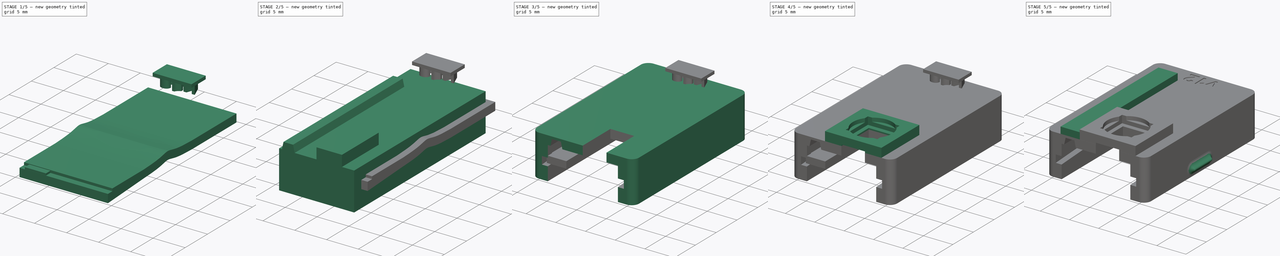
[diagram: build sequence overview — one tinted view per stage of 5, left to right]
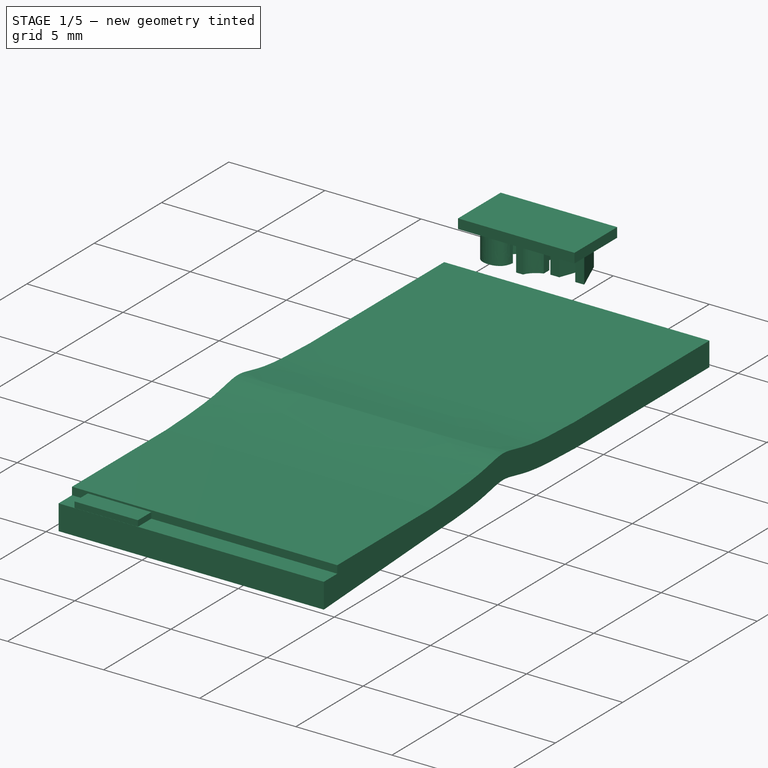
[diagram: stage 1 of 5 — iso view after this stage's code; geometry added in this stage tinted green]
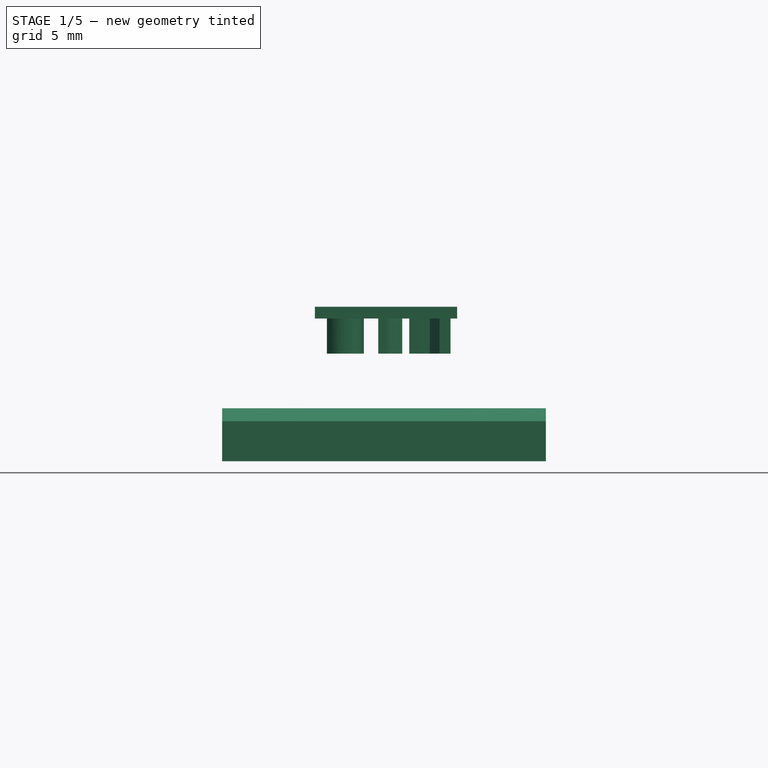
[diagram: stage 1 of 5 — front view after this stage's code; geometry added in this stage tinted green]
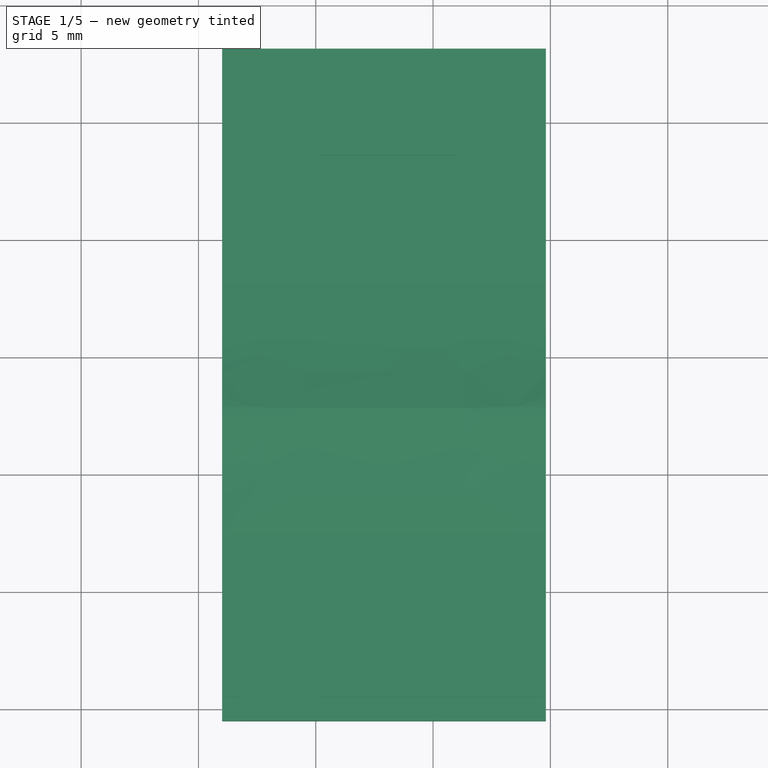
[diagram: stage 1 of 5 — top view after this stage's code; geometry added in this stage tinted green]
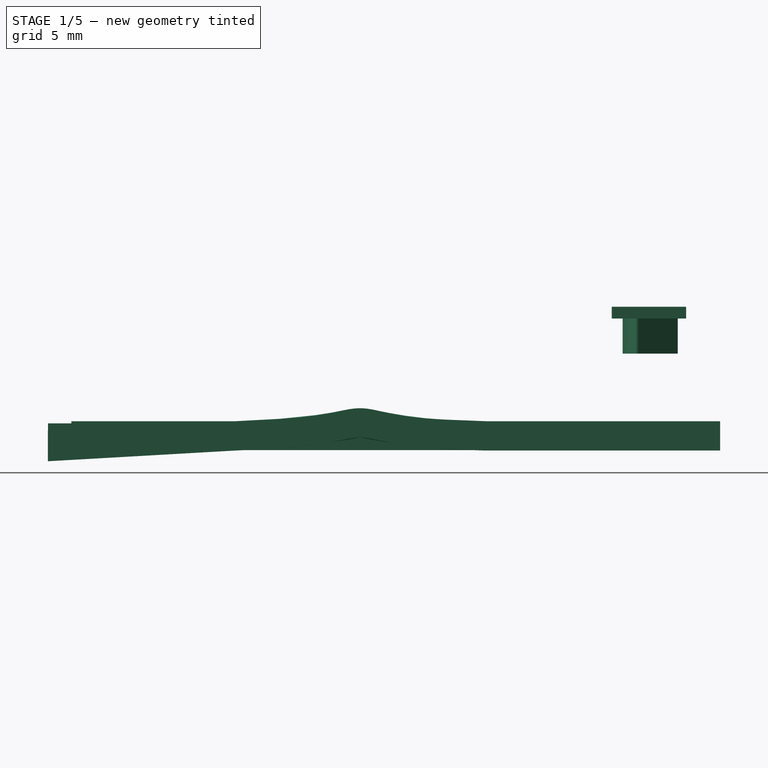
[diagram: stage 1 of 5 — right view after this stage's code; geometry added in this stage tinted green]
FCSTD DOCUMENT  (FreeCAD 0.21R33668 +26 (Git))
Label: HMV080_Enclosure_Inner_Shell
License: All rights reserved
LicenseURL: http://en.wikipedia.org/wiki/All_rights_reserved
objects: Sketcher::SketchObject×5, PartDesign::Pad×5, PartDesign::Body×5, Part::FeaturePython×5, Part::Cut×4, Part::MultiFuse×1
note: 30 computed .brp shape members not serialized (recipe doc carries the construction recipe); baked Part::Feature solids carry a one-line shape summary decoded from their .brp

FEATURE [Part::FeaturePython] b_HMV080_flex_slot_complete_channel_001_  label="HMV080_flex-slot-complete_channel_001"  # a2plus imported part (geometry in sourceFile) (typed FeaturePython)
  Placement = pos=(-8.99121,-20.5058,1.23221) rot=(0,0,1;1.5708rad)
  a2p_Version = 0.4.67
  fixedPosition = false
  objectType = a2pPart
  sourceFile = .\HMV080_flex-slot-complete_channel.FCStd
  subassemblyImport = false
  timeLastImport = 1.73801e+09
  updateColors = true
FEATURE [Sketcher::SketchObject] Sketch
  FullyConstrained = true
  MapMode = 5
  Support = -> [XY_Plane]
  sketch-geometry (5):
    g0: LineSegment StartX=-4.86807 StartY=3.50103 StartZ=0 EndX=-8.16807 EndY=3.50103 EndZ=0
    g1: LineSegment StartX=-8.16807 StartY=3.50103 StartZ=0 EndX=-8.16807 EndY=-20.499 EndZ=0
    g2: LineSegment StartX=-8.16807 StartY=-20.499 StartZ=0 EndX=-4.86807 EndY=-20.499 EndZ=0
    g3: LineSegment StartX=-4.86807 StartY=-20.499 StartZ=0 EndX=-4.86807 EndY=3.50103 EndZ=0
    g4: GeomPoint X=-6.51807 Y=-20.499 Z=0
  constraints (13):
    c: Coincident(g0,g1)
    c: Coincident(g1,g2)
    c: Coincident(g2,g3)
    c: Coincident(g3,g0)
    c: Horizontal(g0)
    c: Horizontal(g2)
    c: Vertical(g1)
    c: Vertical(g3)
    c: Symmetric(g2,g1,g4)
    c: DistanceX(g4) = -6.51807
    c: DistanceY(g4) = -20.499
    c: DistanceX(g1,g2) = 3.3
    c: DistanceY(g3,g3) = 24
FEATURE [PartDesign::Pad] Pad
  Direction = (0,0,1)
  Length = 1.14
  Length2 = 10
  Profile = -> Sketch
  ReferenceAxis = -> Sketch [N_Axis]
  Type = 0
FEATURE [Part::FeaturePython] b_version_text_cutter_001_  label="version_text_cutter_001"  # a2plus imported part (geometry in sourceFile) (typed FeaturePython)
  Placement = pos=(0.76,6.34,5.61) rot=(0,0,1;3.14159rad)
  a2p_Version = 0.4.67
  fixedPosition = true
  objectType = a2pPart
  sourceFile = .\version_text_cutter.FCStd
  subassemblyImport = false
  timeLastImport = 1.73922e+09
  updateColors = true
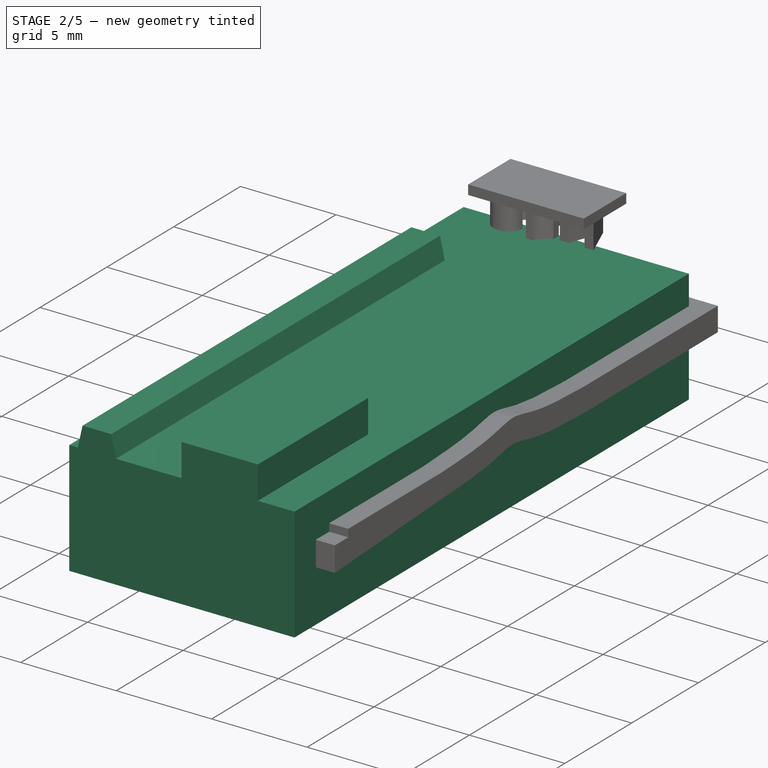
[diagram: stage 2 of 5 — iso view after this stage's code; geometry added in this stage tinted green]
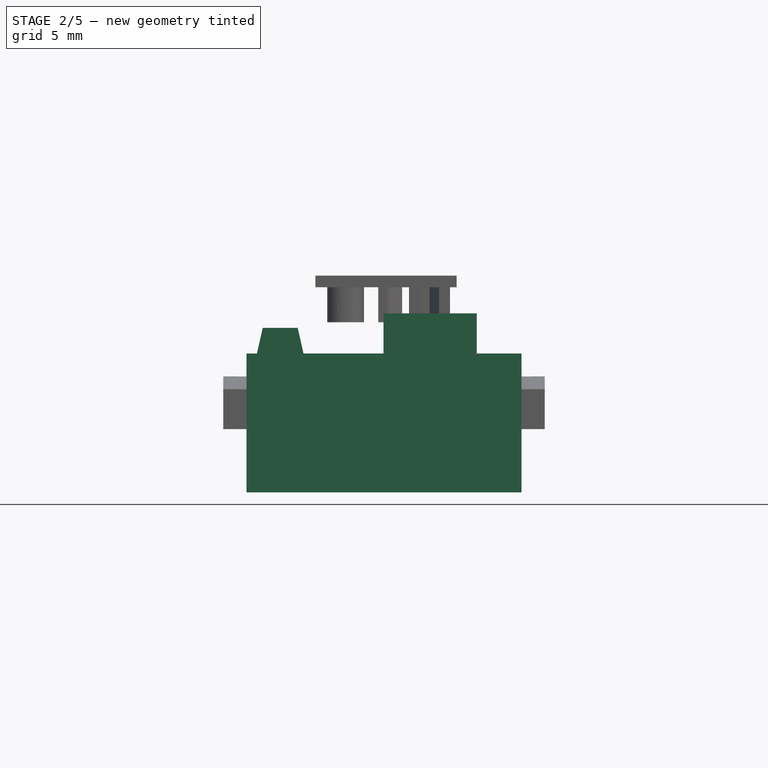
[diagram: stage 2 of 5 — front view after this stage's code; geometry added in this stage tinted green]
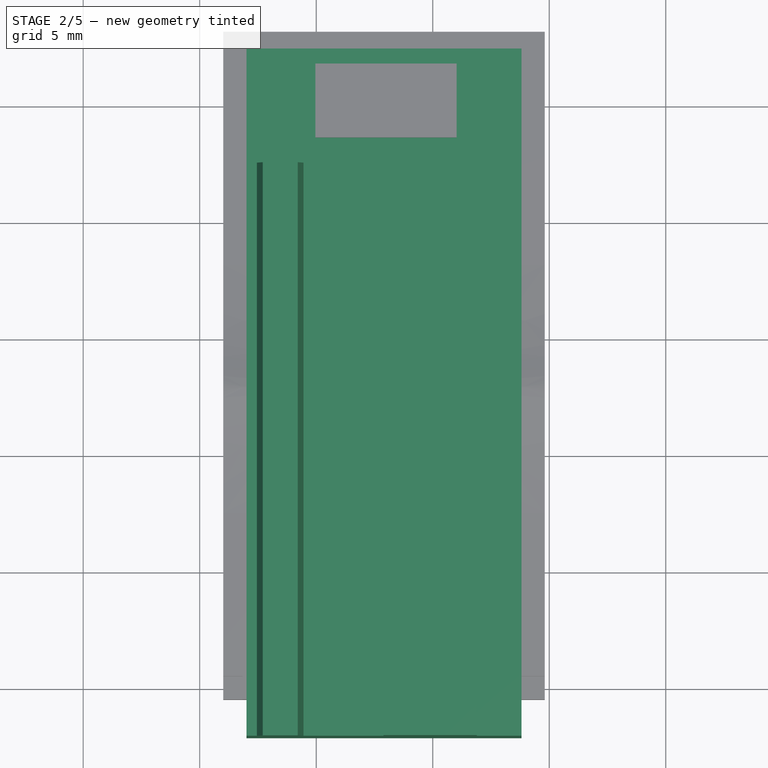
[diagram: stage 2 of 5 — top view after this stage's code; geometry added in this stage tinted green]
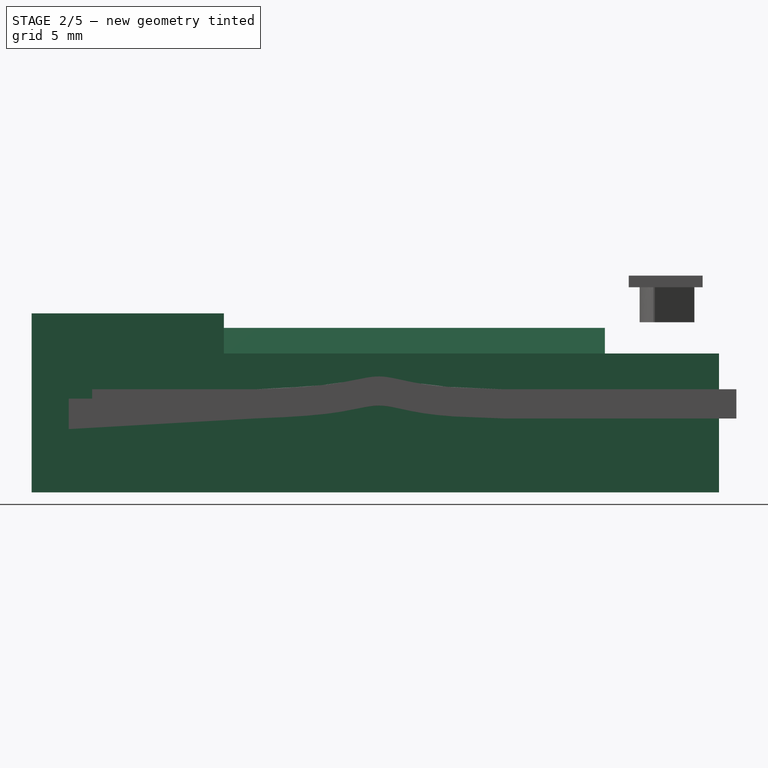
[diagram: stage 2 of 5 — right view after this stage's code; geometry added in this stage tinted green]
FEATURE [PartDesign::Body] Body014
  Group = -> [Sketch016,Pad014]
  Origin = -> Origin014
  Placement = pos=(0,0,-2.75) rot=(0,0,1;0rad)
  Tip = -> Pad014
FEATURE [Sketcher::SketchObject] Sketch023
  FullyConstrained = true
  MapMode = 5
  Placement = pos=(0,0,0) rot=(1,0,0;1.5708rad)
  Support = -> [XZ_Plane021]
  sketch-geometry (18):
    g0: LineSegment StartX=3.81 StartY=2.77 StartZ=0 EndX=1.89 EndY=2.77 EndZ=0
    g1: LineSegment StartX=1.89 StartY=4.49 StartZ=0 EndX=-2.11 EndY=4.49 EndZ=0
    g2: LineSegment StartX=-7.99 StartY=2.77 StartZ=0 EndX=-7.99 EndY=-3.19 EndZ=0
    g3: LineSegment StartX=-7.99 StartY=-3.19 StartZ=0 EndX=3.81 EndY=-3.19 EndZ=0
    g4: LineSegment StartX=3.81 StartY=-3.19 StartZ=0 EndX=3.81 EndY=2.77 EndZ=0
    g5: LineSegment StartX=-2.11 StartY=4.49 StartZ=0 EndX=-2.11 EndY=2.77 EndZ=0
    g6: LineSegment StartX=1.89 StartY=4.49 StartZ=0 EndX=1.89 EndY=2.77 EndZ=0
    g7: GeomPoint X=-0.11 Y=4.49 Z=0
    g8: GeomPoint X=-2.09 Y=-3.19 Z=0
    g9: GeomPoint X=-6.87 Y=2.77 Z=0
    g10: GeomPoint X=-6.22 Y=2.77 Z=0
    g11: GeomPoint X=-6.545 Y=2.77 Z=0
    g12: LineSegment StartX=-5.545 StartY=2.77 StartZ=0 EndX=-5.795 EndY=3.87 EndZ=0
    g13: LineSegment StartX=-5.795 StartY=3.87 StartZ=0 EndX=-7.295 EndY=3.87 EndZ=0
    g14: LineSegment StartX=-7.295 StartY=3.87 StartZ=0 EndX=-7.545 EndY=2.77 EndZ=0
    g15: LineSegment StartX=-7.99 StartY=2.77 StartZ=0 EndX=-7.545 EndY=2.77 EndZ=0
    g16: LineSegment StartX=-2.11 StartY=2.77 StartZ=0 EndX=-5.545 EndY=2.77 EndZ=0
    g17: GeomPoint X=-6.545 Y=3.87 Z=0
  constraints (43):
    c: Horizontal(g0)
    c: Horizontal(g1)
    c: Vertical(g2)
    c: Coincident(g3,g2)
    c: Horizontal(g3)
    c: Coincident(g4,g3)
    c: Vertical(g4)
    c: DistanceX(g1,g1) = 4
    c: DistanceY(g0,g1) = 1.72
    c: Coincident(g5,g1)
    c: Coincident(g6,g1)
    c: Coincident(g6,g0)
    c: Vertical(g6)
    c: Vertical(g5)
    c: DistanceY(g-1,g1) = 4.49
    c: Symmetric(g1,g1,g7)
    c: Symmetric(g3,g2,g8)
    c: DistanceX(g8,g-1) = 2.09
    c: DistanceX(g3,g3) = 11.8
    c: DistanceX(g8,g7) = 1.98
    c: Horizontal(g0,g5)
    c: Coincident(g4,g0)
    c: DistanceY(g3,g-1) = 3.19
    c: DistanceX(g2,g9) = 1.12
    c: DistanceX(g9,g10) = 0.65
    c: Symmetric(g10,g9,g11)
    c: Coincident(g13,g12)
    c: Horizontal(g13)
    c: Coincident(g14,g13)
    c: DistanceY(g12,g12) = 1.1
    c: Coincident(g15,g2)
    c: Coincident(g15,g14)
    c: Horizontal(g15)
    c: Coincident(g16,g5)
    c: Coincident(g16,g12)
    c: Horizontal(g16)
    c: Horizontal(g11,g14)
    c: DistanceX(g13,g13) = 1.5
    c: Symmetric(g12,g14,g11)
    c: Horizontal(g10,g2)
    c: Symmetric(g12,g13,g17)
    c: Vertical(g17,g11)
    c: DistanceX(g14,g13) = 0.25
FEATURE [PartDesign::Pad] Pad021
  Direction = (0,-1,-2e-16)
  Length = 29.5
  Length2 = 10
  Placement = pos=(0,0,0) rot=(1,0,0;1.5708rad)
  Profile = -> Sketch023
  ReferenceAxis = -> Sketch023 [N_Axis]
  Reversed = true
  Type = 0
FEATURE [PartDesign::Body] Body021
  Group = -> [Sketch023,Pad021]
  Origin = -> Origin021
  Placement = pos=(0,-22.1,0) rot=(0,0,1;0rad)
  Tip = -> Pad021
FEATURE [Sketcher::SketchObject] Sketch024
  FullyConstrained = true
  MapMode = 5
  Support = -> [XY_Plane022]
  sketch-geometry (8):
    g0: LineSegment StartX=2.43874 StartY=7.5 StartZ=0 EndX=-2.56126 EndY=7.5 EndZ=0
    g1: LineSegment StartX=2.43874 StartY=7.5 StartZ=0 EndX=2.43874 EndY=-13.85 EndZ=0
    g2: LineSegment StartX=-2.56126 StartY=-13.85 StartZ=0 EndX=2.43874 EndY=-13.85 EndZ=0
    g3: GeomPoint X=-0.06126 Y=7.5 Z=0
    g4: LineSegment StartX=-2.56126 StartY=7.5 StartZ=0 EndX=-7.56126 EndY=7.5 EndZ=0
    g5: LineSegment StartX=-7.56126 StartY=7.5 StartZ=0 EndX=-7.56126 EndY=2.5 EndZ=0
    g6: LineSegment StartX=-7.56126 StartY=2.5 StartZ=0 EndX=-2.56126 EndY=2.5 EndZ=0
    g7: LineSegment StartX=-2.56126 StartY=-13.85 StartZ=0 EndX=-2.56126 EndY=2.5 EndZ=0
  constraints (22):
    c: Horizontal(g0)
    c: Coincident(g1,g0)
    c: Vertical(g1)
    c: Coincident(g2,g1)
    c: Horizontal(g2)
    c: Symmetric(g0,g0,g3)
    c: DistanceY(g-1,g3) = 7.5
    c: DistanceY(g1,g1) = 21.35
    c: DistanceX(g0,g0) = 5
    c: DistanceX(g3,g-1) = 0.06126
    c: Coincident(g4,g0)
    c: Horizontal(g4)
    c: Coincident(g5,g4)
    c: Vertical(g5)
    c: Coincident(g6,g5)
    c: Horizontal(g6)
    c: DistanceY(g5,g5) = 5
    c: DistanceX(g4,g4) = 5
    c: Coincident(g7,g2)
    c: Coincident(g7,g6)
    c: Vertical(g7)
    c: Equal(g6,g4)
FEATURE [PartDesign::Pad] Pad022
  Direction = (0,0,1)
  Length = 1.72
  Length2 = 10
  Profile = -> Sketch024
  ReferenceAxis = -> Sketch024 [N_Axis]
  Reversed = true
  Type = 0
FEATURE [PartDesign::Body] Body022
  Group = -> [Sketch024,Pad022]
  Origin = -> Origin022
  Placement = pos=(0,0,4.49) rot=(0,0,1;0rad)
  Tip = -> Pad022
FEATURE [Part::Cut] Cut006
  Base = -> Body021
  Tool = -> Body022
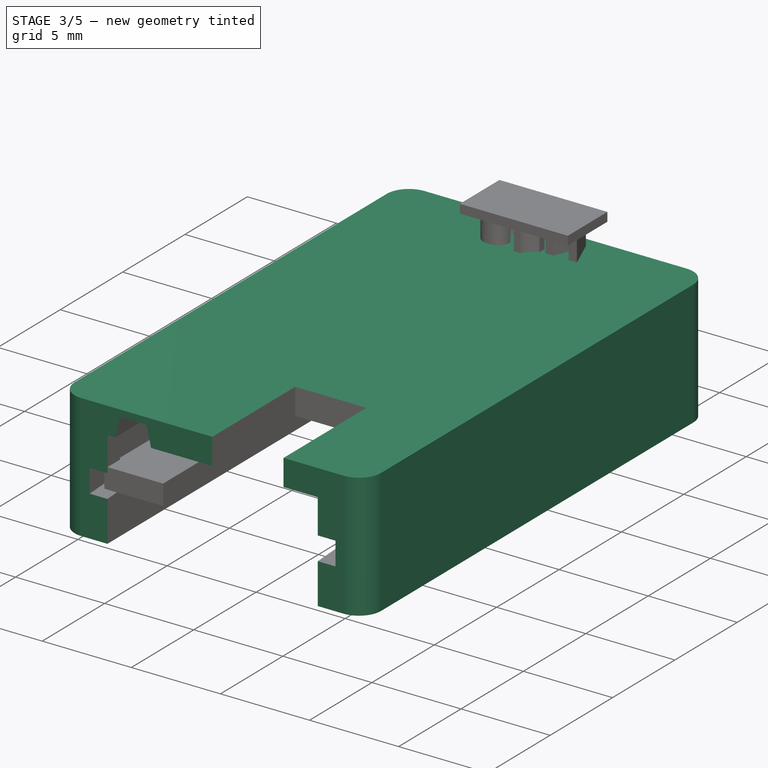
[diagram: stage 3 of 5 — iso view after this stage's code; geometry added in this stage tinted green]
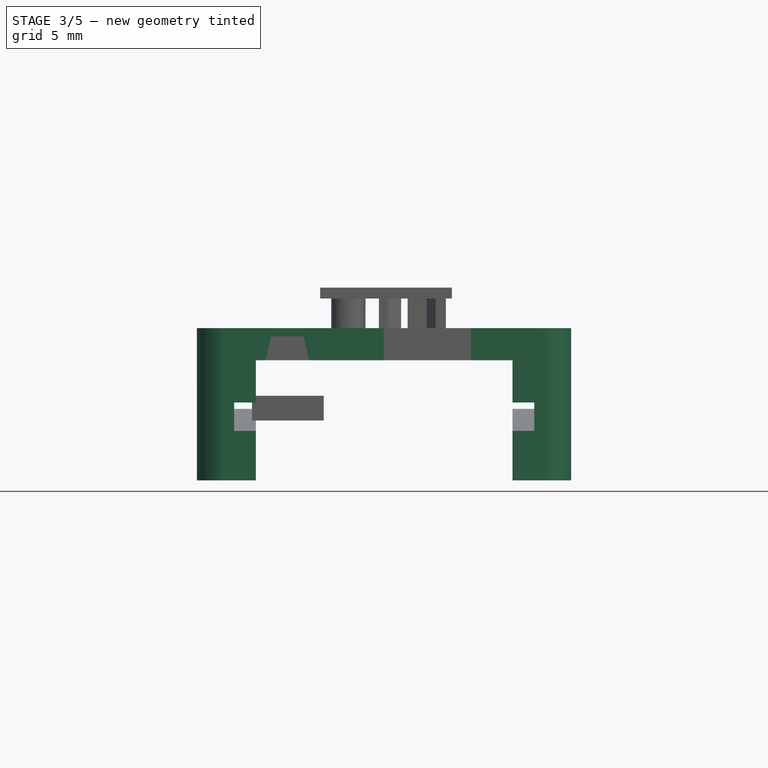
[diagram: stage 3 of 5 — front view after this stage's code; geometry added in this stage tinted green]
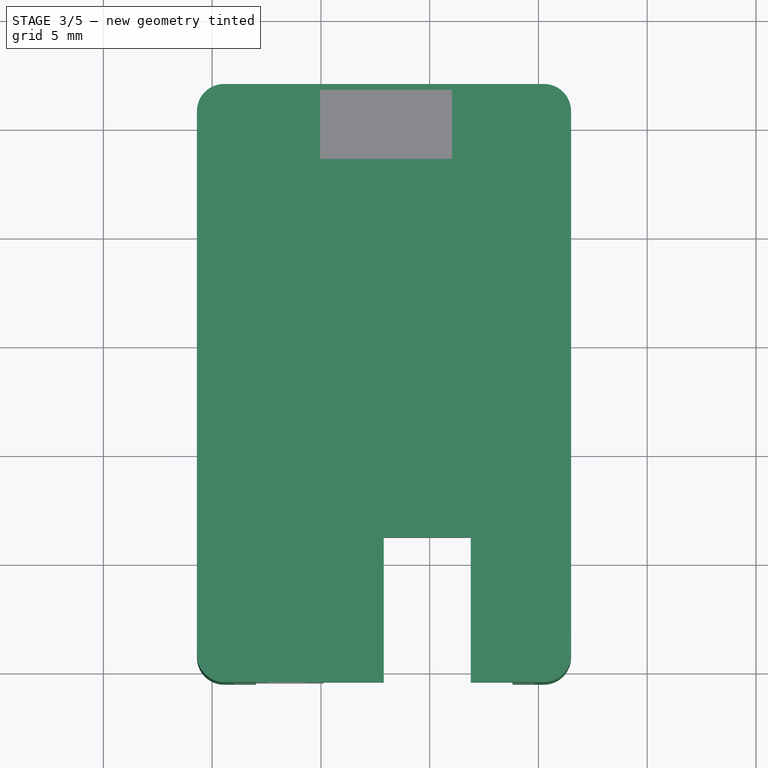
[diagram: stage 3 of 5 — top view after this stage's code; geometry added in this stage tinted green]
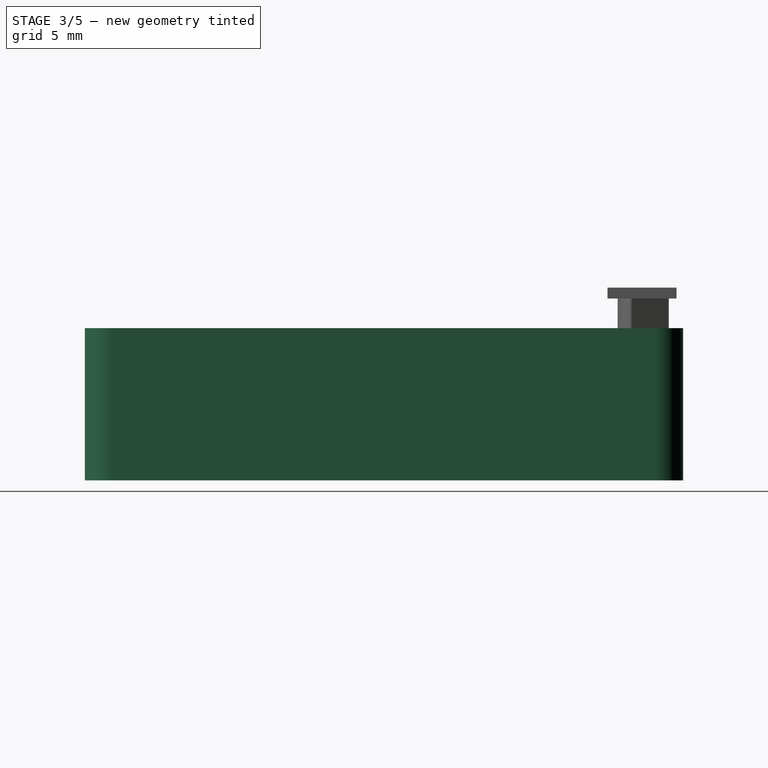
[diagram: stage 3 of 5 — right view after this stage's code; geometry added in this stage tinted green]
FEATURE [Sketcher::SketchObject] Sketch016
  FullyConstrained = true
  MapMode = 5
  Support = -> [XY_Plane014]
  expr: Constraints[23] = .Constraints.arc1
  expr: Constraints[24] = .Constraints.arc1
  expr: Constraints[25] = .Constraints.arc1
  sketch-geometry (12):
    g0: LineSegment StartX=-9.45 StartY=7 StartZ=0 EndX=5.25 EndY=7 EndZ=0
    g1: LineSegment StartX=6.5 StartY=5.75 StartZ=0 EndX=6.5 EndY=-19.25 EndZ=0
    g2: LineSegment StartX=5.25 StartY=-20.5 StartZ=0 EndX=-9.45 EndY=-20.5 EndZ=0
    g3: LineSegment StartX=-10.7 StartY=-19.25 StartZ=0 EndX=-10.7 EndY=5.75 EndZ=0
    g4: ArcOfCircle CenterX=-9.45 CenterY=5.75 CenterZ=0 NormalX=0 NormalY=0 NormalZ=1 AngleXU=0 Radius=1.25 StartAngle=1.5708 EndAngle=3.14159
    g5: GeomPoint X=-10.7 Y=7 Z=0
    g6: ArcOfCircle CenterX=5.25 CenterY=5.75 CenterZ=0 NormalX=0 NormalY=0 NormalZ=1 AngleXU=0 Radius=1.25 StartAngle=1e-16 EndAngle=1.5708
    g7: GeomPoint X=6.5 Y=7 Z=0
    g8: ArcOfCircle CenterX=5.25 CenterY=-19.25 CenterZ=0 NormalX=0 NormalY=0 NormalZ=1 AngleXU=0 Radius=1.25 StartAngle=4.71239 EndAngle=6.28319
    g9: GeomPoint X=6.5 Y=-20.5 Z=0
    g10: ArcOfCircle CenterX=-9.45 CenterY=-19.25 CenterZ=0 NormalX=0 NormalY=0 NormalZ=1 AngleXU=0 Radius=1.25 StartAngle=3.14159 EndAngle=4.71239
    g11: GeomPoint X=-10.7 Y=-20.5 Z=0
  constraints (29):
    c: Horizontal(g0)
    c: Horizontal(g2)
    c: Vertical(g1)
    c: Vertical(g3)
    c: DistanceY(g-1,g7) = 7
    c: DistanceX(g-1,g7) = 6.5
    c: PointOnObject(g5,g0)
    c: PointOnObject(g5,g3)
    c: Tangent(g0,g4) = 1.5708
    c: Tangent(g3,g4) = 1.5708
    c: Diameter(g4) = 2.5  'arc1'
    c: PointOnObject(g7,g0)
    c: PointOnObject(g7,g1)
    c: Tangent(g0,g6) = 1.5708
    c: Tangent(g1,g6) = 1.5708
    c: PointOnObject(g9,g1)
    c: PointOnObject(g9,g2)
    c: Tangent(g1,g8) = 1.5708
    c: Tangent(g2,g8) = 1.5708
    c: PointOnObject(g11,g2)
    c: PointOnObject(g11,g3)
    c: Tangent(g2,g10) = 1.5708
    c: Tangent(g3,g10) = 1.5708
    c: Diameter(g6) = 2.5
    c: Diameter(g8) = 2.5
    c: Diameter(g10) = 2.5
    c: DistanceX(g5,g-1) = 10.7
    c: DistanceY(g9,g7) = 27.5
    c: DistanceX(g5,g7) = 17.2
FEATURE [PartDesign::Pad] Pad014
  Direction = (0,0,1)
  Length = 7
  Length2 = 10
  Profile = -> Sketch016
  ReferenceAxis = -> Sketch016 [N_Axis]
  Type = 0
FEATURE [Part::Cut] Cut007  label="inner_shell_slots_Cut007"
  Base = -> Body014
  Tool = -> Cut006
FEATURE [Part::Cut] Cut017  label="flex_slot_complete_Cut"
  Base = -> Cut007
  Tool = -> b_HMV080_flex_slot_complete_channel_001_
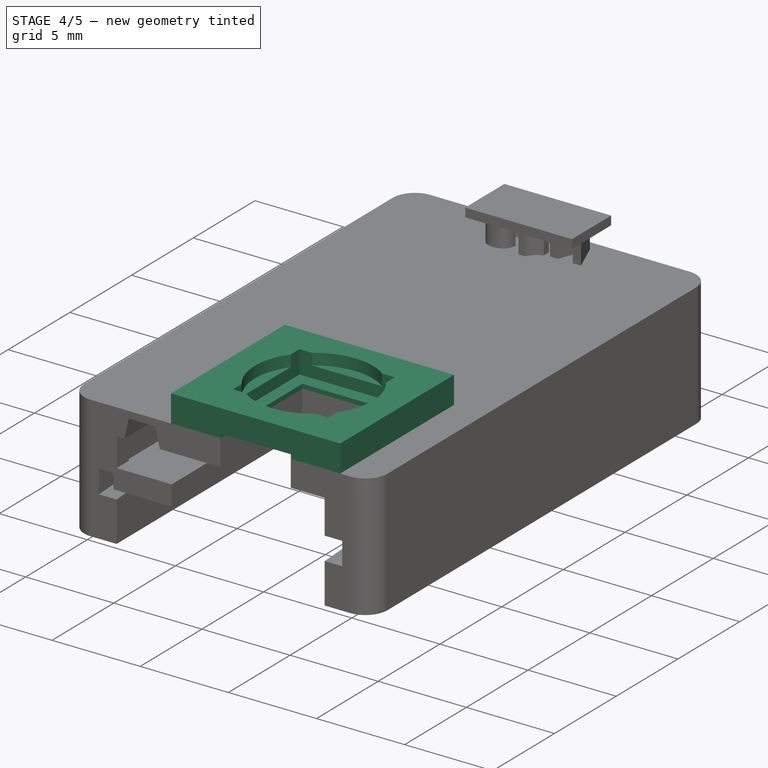
[diagram: stage 4 of 5 — iso view after this stage's code; geometry added in this stage tinted green]
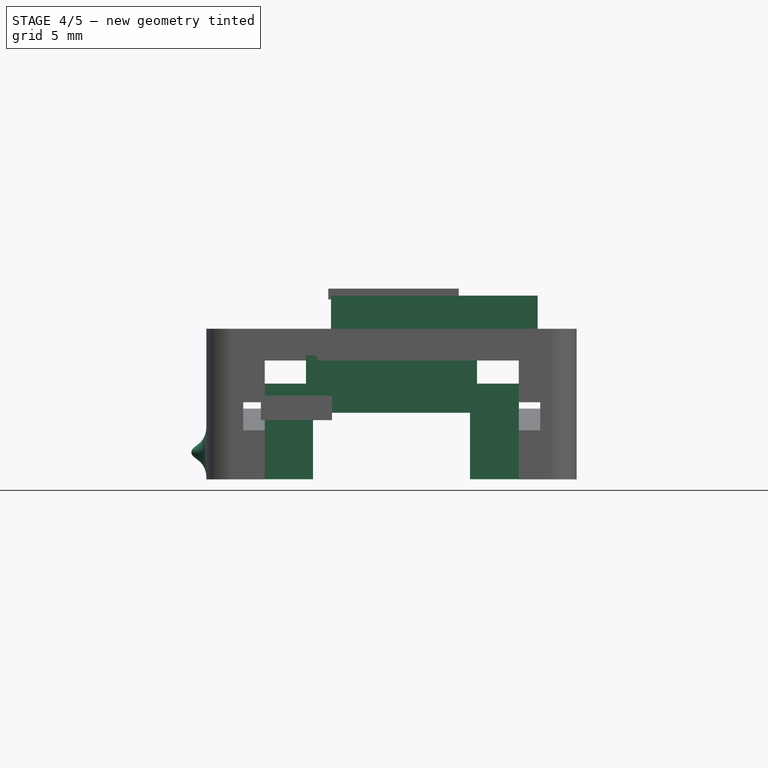
[diagram: stage 4 of 5 — front view after this stage's code; geometry added in this stage tinted green]
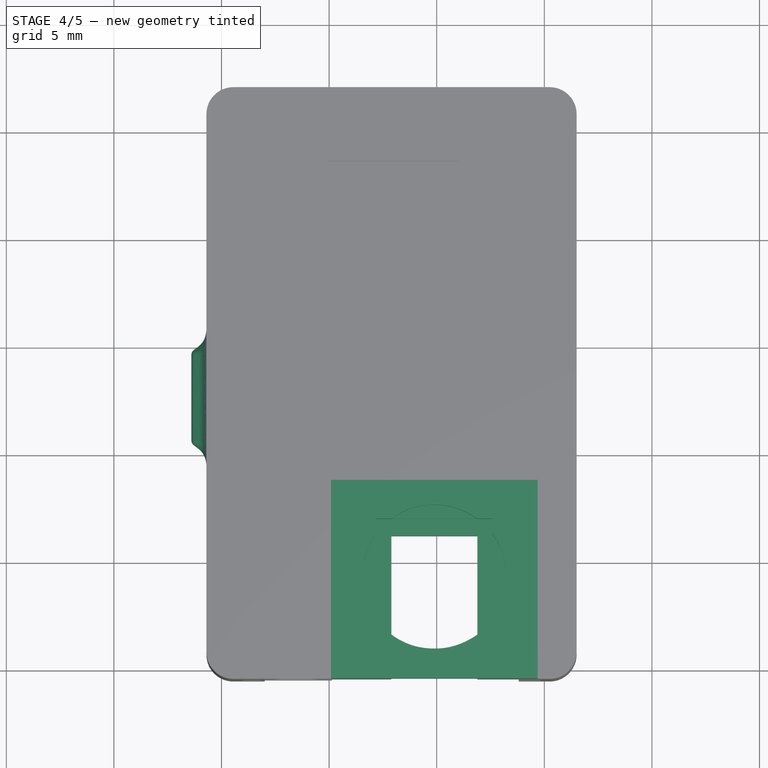
[diagram: stage 4 of 5 — top view after this stage's code; geometry added in this stage tinted green]
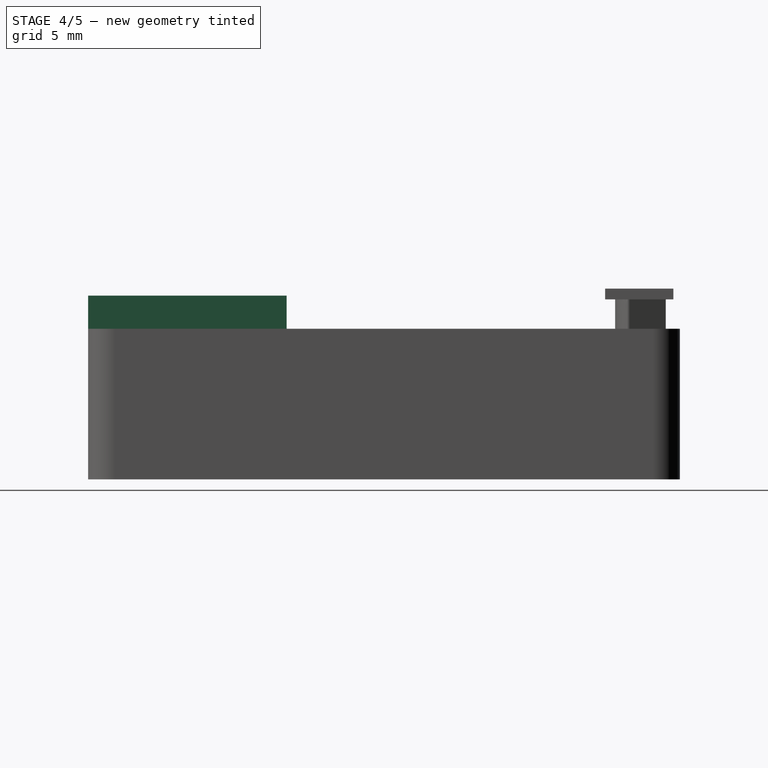
[diagram: stage 4 of 5 — right view after this stage's code; geometry added in this stage tinted green]
FEATURE [Sketcher::SketchObject] Sketch030
  FullyConstrained = true
  MapMode = 5
  Placement = pos=(0,0,0) rot=(1,0,0;1.5708rad)
  Support = -> [XZ_Plane028]
  sketch-geometry (12):
    g0: LineSegment StartX=3.82042 StartY=-2.74799 StartZ=0 EndX=1.54944 EndY=-2.74799 EndZ=0
    g1: LineSegment StartX=1.54944 StartY=-2.74799 StartZ=0 EndX=1.54944 EndY=0.342011 EndZ=0
    g2: LineSegment StartX=1.54944 StartY=0.342011 StartZ=0 EndX=-5.75056 EndY=0.342011 EndZ=0
    g3: LineSegment StartX=-5.75056 StartY=0.342011 StartZ=0 EndX=-5.75056 EndY=-2.74799 EndZ=0
    g4: LineSegment StartX=-5.75056 StartY=-2.74799 StartZ=0 EndX=-8.02154 EndY=-2.74799 EndZ=0
    g5: LineSegment StartX=-8.02154 StartY=-2.74799 StartZ=0 EndX=-8.02154 EndY=1.7 EndZ=0
    g6: LineSegment StartX=-8.02154 StartY=1.7 StartZ=0 EndX=-6.07154 EndY=1.7 EndZ=0
    g7: LineSegment StartX=-6.07154 StartY=1.7 StartZ=0 EndX=-6.07154 EndY=3.01301 EndZ=0
    g8: LineSegment StartX=-6.07154 StartY=3.01301 StartZ=0 EndX=1.87042 EndY=3.01301 EndZ=0
    g9: LineSegment StartX=1.87042 StartY=3.01301 StartZ=0 EndX=1.87042 EndY=1.7 EndZ=0
    g10: LineSegment StartX=1.87042 StartY=1.7 StartZ=0 EndX=3.82042 EndY=1.7 EndZ=0
    g11: LineSegment StartX=3.82042 StartY=1.7 StartZ=0 EndX=3.82042 EndY=-2.74799 EndZ=0
  constraints (36):
    c: Horizontal(g0)
    c: Coincident(g0,g1)
    c: Vertical(g1)
    c: Coincident(g1,g2)
    c: Horizontal(g2)
    c: Coincident(g2,g3)
    c: Vertical(g3)
    c: Coincident(g3,g4)
    c: Horizontal(g4)
    c: Coincident(g4,g5)
    c: Vertical(g5)
    c: Coincident(g5,g6)
    c: Horizontal(g6)
    c: Coincident(g6,g7)
    c: Vertical(g7)
    c: Coincident(g7,g8)
    c: Horizontal(g8)
    c: Coincident(g8,g9)
    c: Vertical(g9)
    c: Coincident(g9,g10)
    c: Horizontal(g10)
    c: Coincident(g10,g11)
    c: Coincident(g11,g0)
    c: Vertical(g11)
    c: Horizontal(g10,g5)
    c: Horizontal(g0,g4)
    c: DistanceX(g0) = 3.82042
    c: DistanceY(g0) = -2.74799
    c: DistanceY(g7) = 3.01301
    c: DistanceX(g5) = -8.02154
    c: DistanceY(g5) = 1.7
    c: DistanceX(g6,g6) = 1.95
    c: Equal(g6,g10)
    c: Equal(g0,g4)
    c: DistanceY(g1,g1) = 3.09
    c: DistanceX(g3,g0) = 7.3
FEATURE [PartDesign::Pad] Pad028
  Direction = (0,-1,-2e-16)
  Length = 1.5
  Length2 = 10
  Placement = pos=(0,0,0) rot=(1,0,0;1.5708rad)
  Profile = -> Sketch030
  ReferenceAxis = -> Sketch030 [N_Axis]
  Type = 0
FEATURE [PartDesign::Body] Body028  label="Back_wall_PCB_Stop_v2"
  Group = -> [Sketch030,Pad028]
  Origin = -> Origin028
  Placement = pos=(0,6.99,0) rot=(0,0,1;0rad)
  Tip = -> Pad028
FEATURE [Part::FeaturePython] b_o_ring_glass_mount_bottom_001_  label="o-ring_glass_mount_bottom_001"  # a2plus imported part (geometry in sourceFile) (typed FeaturePython)
  Placement = pos=(-0.109126,-15.7756,4.48892) rot=(0,0,1;0rad)
  a2p_Version = 0.4.67
  fixedPosition = false
  objectType = a2pPart
  sourceFile = .\o-ring_glass_mount_bottom.FCStd
  subassemblyImport = false
  timeLastImport = 1.73922e+09
  updateColors = true
FEATURE [Part::FeaturePython] b_snap_fit_pin_001_001  label="snap-fit_pin_002"  # a2plus imported part (geometry in sourceFile) (typed FeaturePython)
  Placement = pos=(-10.6986,-7.32926,-1.49086) rot=(0.707107,-0.707107,0;3.14159rad)
  a2p_Version = 0.4.67
  fixedPosition = false
  objectType = a2pPart
  sourceFile = .\snap-fit_pin.FCStd
  subassemblyImport = false
  timeLastImport = 1.73739e+09
  updateColors = true
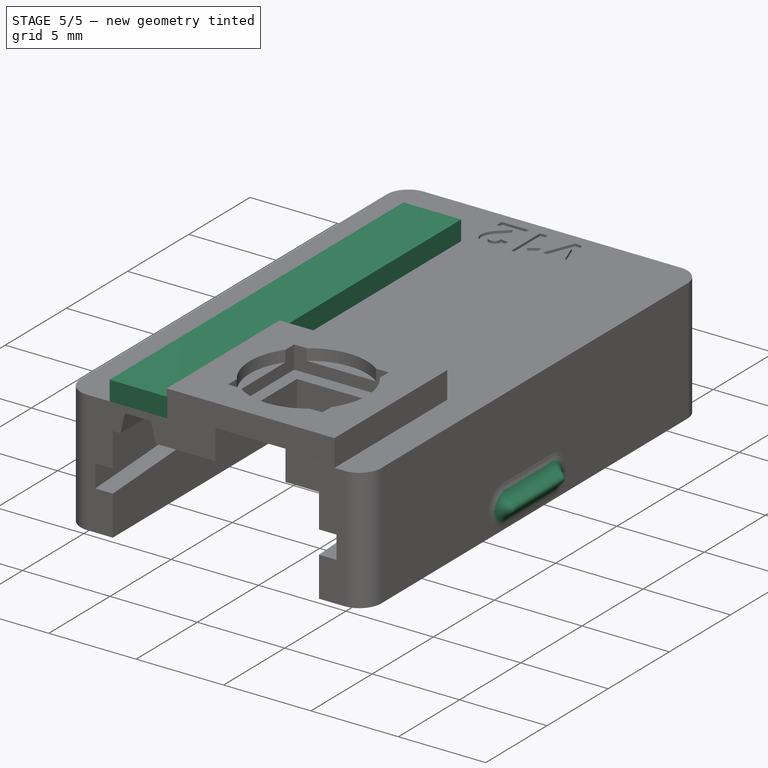
[diagram: stage 5 of 5 — iso view after this stage's code; geometry added in this stage tinted green]
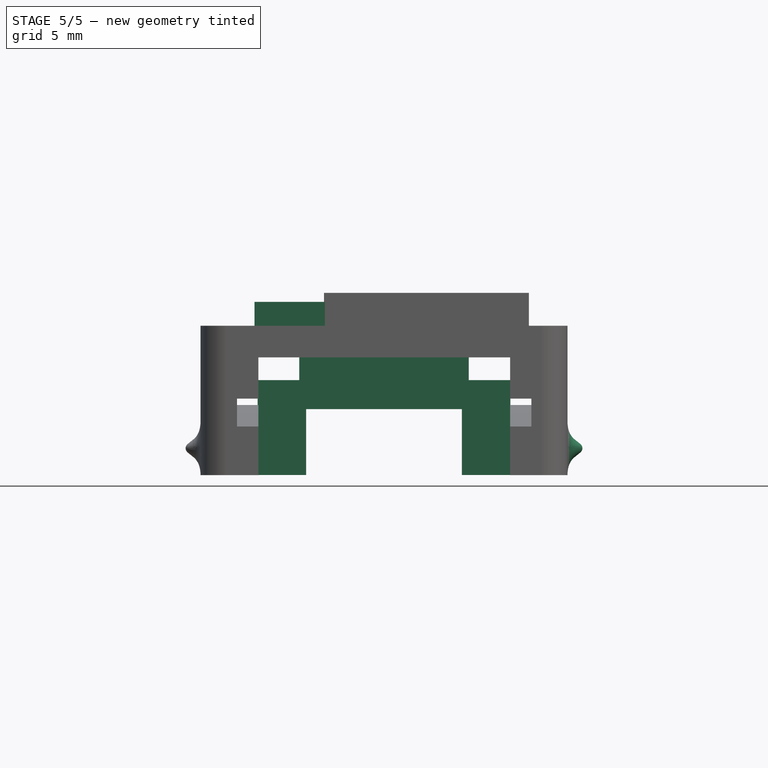
[diagram: stage 5 of 5 — front view after this stage's code; geometry added in this stage tinted green]
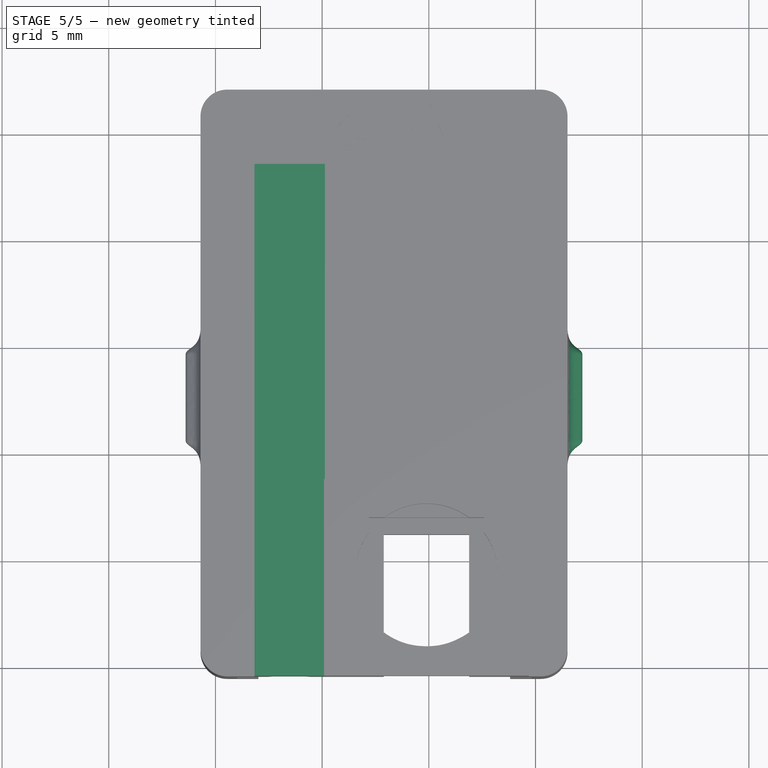
[diagram: stage 5 of 5 — top view after this stage's code; geometry added in this stage tinted green]
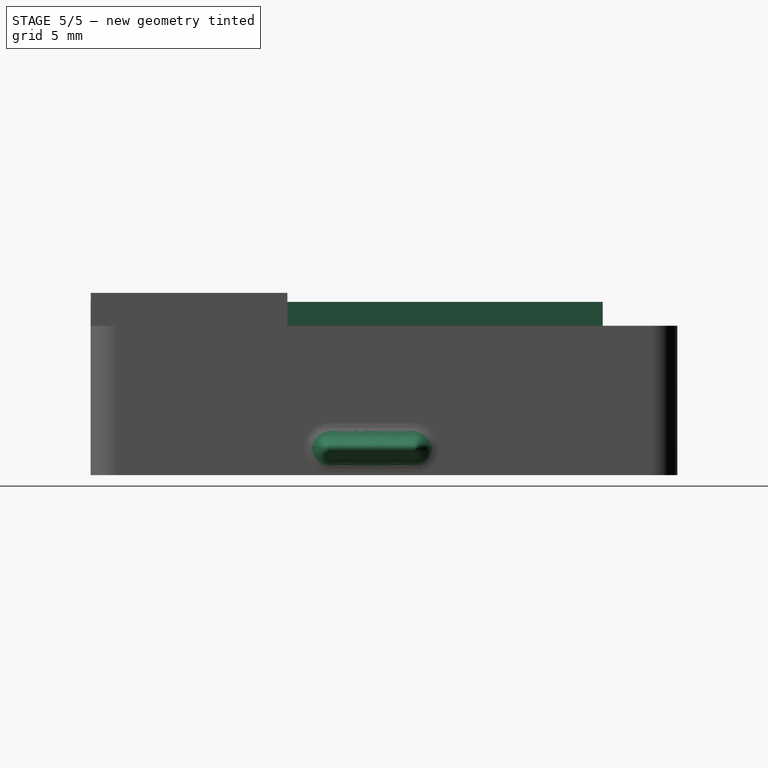
[diagram: stage 5 of 5 — right view after this stage's code; geometry added in this stage tinted green]
FEATURE [Part::FeaturePython] b_snap_fit_pin_001_  label="snap-fit_pin_001"  # a2plus imported part (geometry in sourceFile) (typed FeaturePython)
  Placement = pos=(6.49838,-7.32926,-1.49086) rot=(0,0,-1;1.5708rad)
  a2p_Version = 0.4.67
  fixedPosition = false
  objectType = a2pPart
  sourceFile = .\snap-fit_pin.FCStd
  subassemblyImport = false
  timeLastImport = 1.73739e+09
  updateColors = true
FEATURE [PartDesign::Body] Body  label="Header_slot_thickener"
  Group = -> [Sketch,Pad]
  Origin = -> Origin
  Placement = pos=(0,0,4.23) rot=(0,0,1;0rad)
  Tip = -> Pad
FEATURE [Part::MultiFuse] Fusion
  Shapes = -> [b_snap_fit_pin_001_,Body028,b_o_ring_glass_mount_bottom_001_,b_snap_fit_pin_001_001,Cut017,Body]
FEATURE [Part::Cut] Cut
  Base = -> Fusion
  Tool = -> b_version_text_cutter_001_
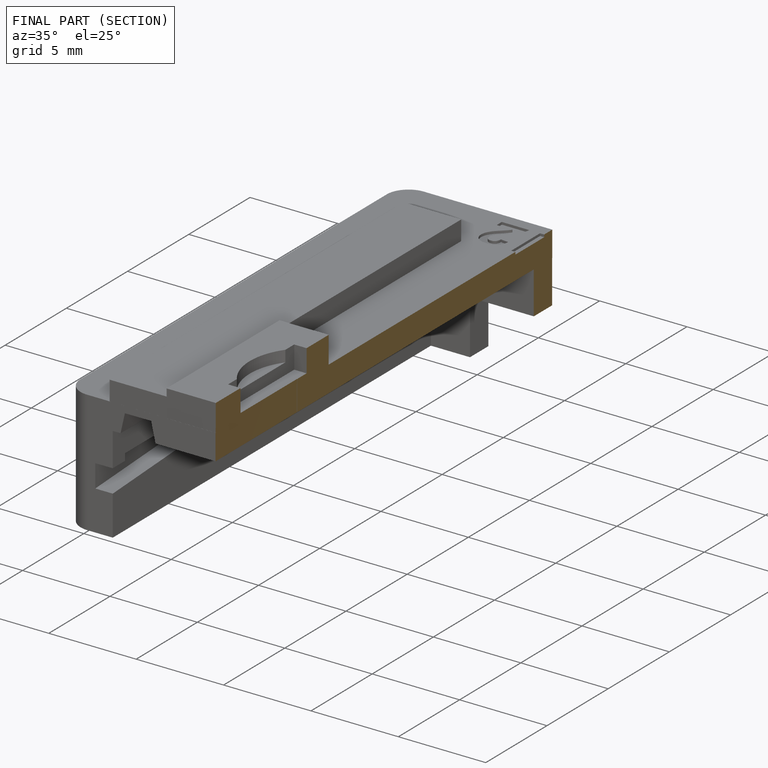
[diagram: finished part — half-section view (interior)]
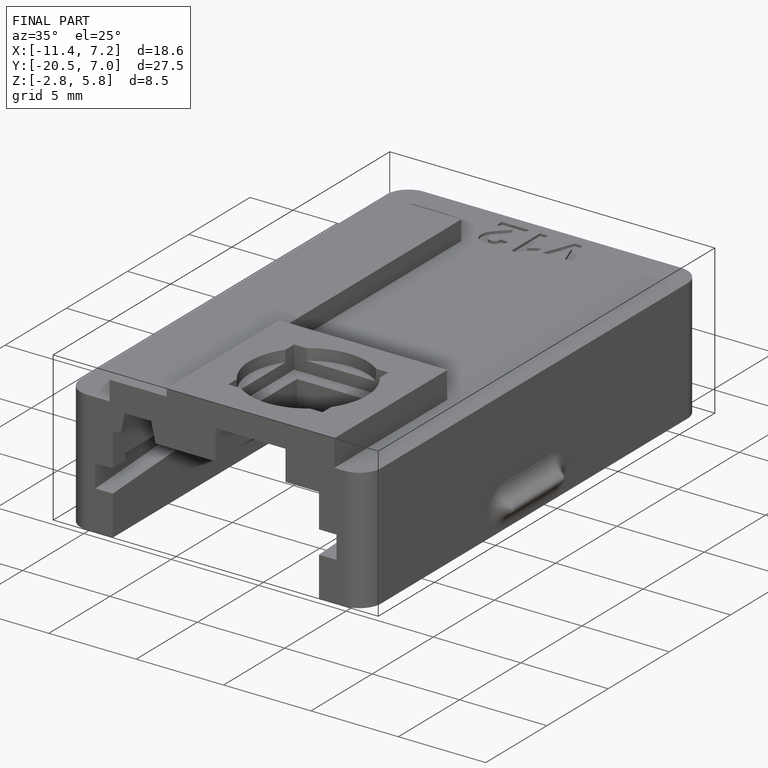
[diagram: finished part — iso view with bounding-box wireframe]
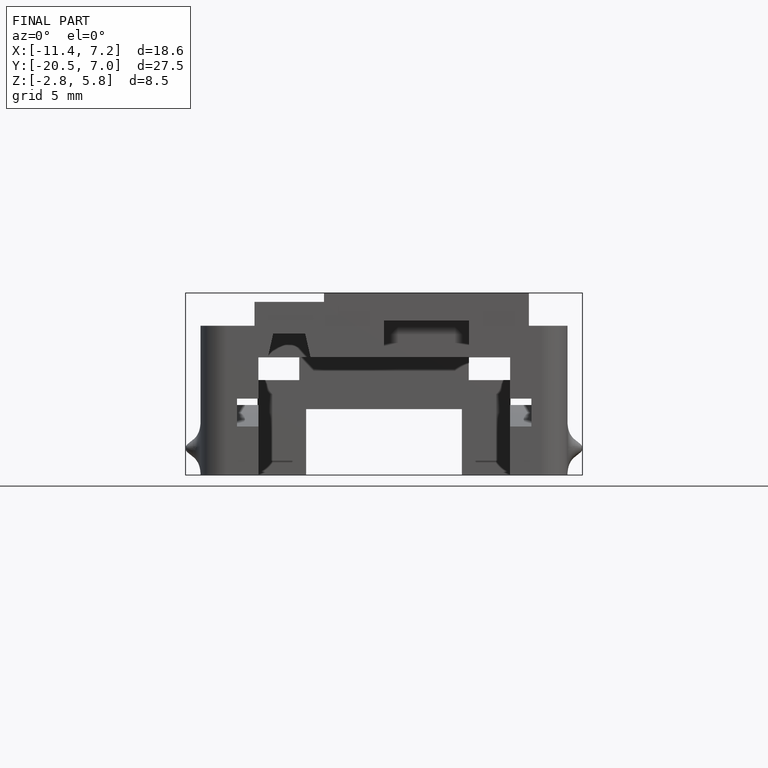
[diagram: finished part — front view with bounding-box wireframe]
